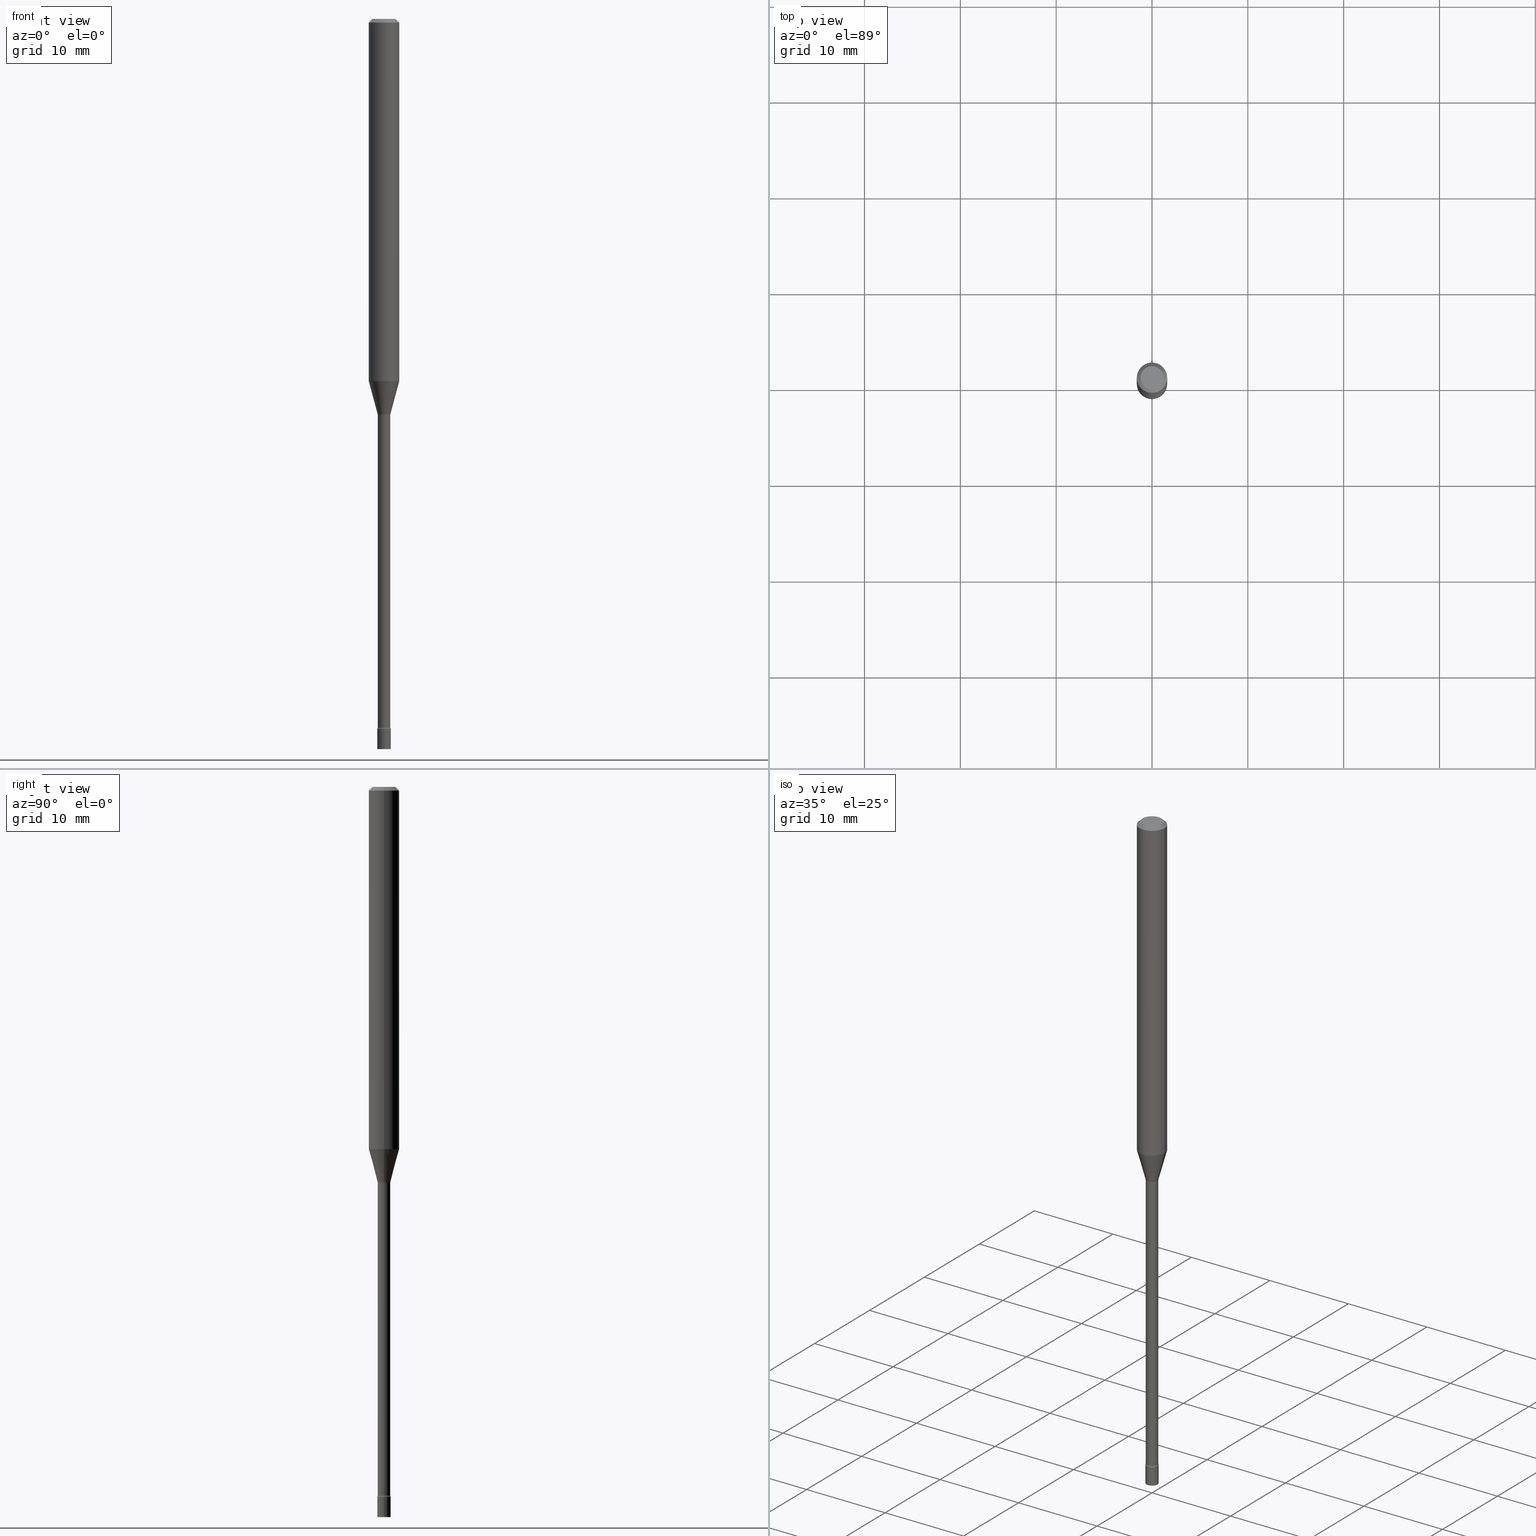
[diagram: canonical four-view strip — front | top / right | iso, engineering-drawing reading convention]
A machine part, canonical four-view strip (front | top / right | iso — engineering-drawing reading convention). The complete STEP part file that produces these views, byte-faithful:
ISO-10303-21;
HEADER;
FILE_DESCRIPTION (( 'STEP AP203' ),
    '1' );
FILE_NAME ('09675.STEP',
    '2024-03-09T00:41:13',
    ( '' ),
    ( '' ),
    'SwSTEP 2.0',
    'SolidWorks 2023',
    '' );
FILE_SCHEMA (( 'CONFIG_CONTROL_DESIGN' ));
ENDSEC;

DATA;
#1 = ORIENTED_EDGE ( 'NONE', *, *, #29, .F. ) ;
#2 = UNCERTAINTY_MEASURE_WITH_UNIT (LENGTH_MEASURE( 1.000000000000000082E-05 ), #58, 'distance_accuracy_value', 'NONE');
#3 = DIRECTION ( 'NONE',  ( -2.445468806185136597E-29, 3.491481338843145583E-15, 1.000000000000000000 ) ) ;
#4 = ORIENTED_EDGE ( 'NONE', *, *, #303, .T. ) ;
#5 = CARTESIAN_POINT ( 'NONE',  ( 7.116706949045365287E-29, -1.016077140046173230E-14, -2.910160592130893065 ) ) ;
#6 = EDGE_CURVE ( 'NONE', #416, #221, #45, .T. ) ;
#7 = FACE_OUTER_BOUND ( 'NONE', #240, .T. ) ;
#8 = TOROIDAL_SURFACE ( 'NONE', #266, 0.04085000000000000436, 0.01500000000000003414 ) ;
#9 = CARTESIAN_POINT ( 'NONE',  ( 0.000000000000000000, 0.000000000000000000, 0.000000000000000000 ) ) ;
#10 = ADVANCED_FACE ( 'NONE', ( #14 ), #481, .T. ) ;
#11 = DIRECTION ( 'NONE',  ( 1.000000000000000000, -6.982962677686266711E-15, 0.000000000000000000 ) ) ;
#12 = ORIENTED_EDGE ( 'NONE', *, *, #259, .F. ) ;
#13 = DIRECTION ( 'NONE',  ( 1.000000000000000000, -6.982962677686262766E-15, 0.000000000000000000 ) ) ;
#14 = FACE_OUTER_BOUND ( 'NONE', #379, .T. ) ;
#15 = AXIS2_PLACEMENT_3D ( 'NONE', #320, #239, #369 ) ;
#16 = VECTOR ( 'NONE', #84, 39.37007874015748143 ) ;
#17 = COORDINATED_UNIVERSAL_TIME_OFFSET ( 5, 0, .BEHIND. ) ;
#18 = CARTESIAN_POINT ( 'NONE',  ( 7.133432507642041740E-29, -1.018465106540545414E-14, -2.916999999999999371 ) ) ;
#19 = DATE_AND_TIME ( #459, #453 ) ;
#20 = CARTESIAN_POINT ( 'NONE',  ( 7.336406418555409790E-29, -1.047444401652943635E-14, -3.000000000000000444 ) ) ;
#21 = EDGE_CURVE ( 'NONE', #299, #149, #249, .T. ) ;
#22 = COORDINATED_UNIVERSAL_TIME_OFFSET ( 5, 0, .BEHIND. ) ;
#23 = CARTESIAN_POINT ( 'NONE',  ( -0.02636111260566397288, -5.115847269272562360E-15, -1.623092501787273489 ) ) ;
#24 = CIRCLE ( 'NONE', #274, 0.02584999999999999798 ) ;
#25 = PERSON_AND_ORGANIZATION ( #475, #386 ) ;
#26 =( GEOMETRIC_REPRESENTATION_CONTEXT ( 3 ) GLOBAL_UNCERTAINTY_ASSIGNED_CONTEXT ( ( #2 ) ) GLOBAL_UNIT_ASSIGNED_CONTEXT ( ( #58, #196, #63 ) ) REPRESENTATION_CONTEXT ( 'NONE', 'WORKASPACE' ) );
#27 = PRODUCT ( '09675', '09675', '', ( #94 ) ) ;
#28 = DIRECTION ( 'NONE',  ( 1.000000000000000000, -6.982962677686262766E-15, 0.000000000000000000 ) ) ;
#29 = EDGE_CURVE ( 'NONE', #221, #420, #519, .T. ) ;
#30 = COORDINATED_UNIVERSAL_TIME_OFFSET ( 5, 0, .BEHIND. ) ;
#31 = DIRECTION ( 'NONE',  ( -2.445468806185136877E-29, 3.491481338843145188E-15, 1.000000000000000000 ) ) ;
#32 = EDGE_LOOP ( 'NONE', ( #418, #446, #1, #70 ) ) ;
#33 = CARTESIAN_POINT ( 'NONE',  ( 0.000000000000000000, 0.000000000000000000, 0.000000000000000000 ) ) ;
#34 = ORIENTED_EDGE ( 'NONE', *, *, #300, .F. ) ;
#35 = VECTOR ( 'NONE', #321, 39.37007874015748143 ) ;
#36 = CIRCLE ( 'NONE', #332, 0.02750000000000000014 ) ;
#37 = CARTESIAN_POINT ( 'NONE',  ( 3.978716091192442903E-29, -5.680552109198189937E-15, -1.626974787463811412 ) ) ;
#38 = CIRCLE ( 'NONE', #215, 0.02750000000000000014 ) ;
#39 = APPROVAL ( #353, 'UNSPECIFIED' ) ;
#40 = EDGE_LOOP ( 'NONE', ( #315, #290, #361, #338 ) ) ;
#41 = DIRECTION ( 'NONE',  ( 1.000000000000000000, -6.982962677686266711E-15, 0.000000000000000000 ) ) ;
#42 = CARTESIAN_POINT ( 'NONE',  ( 3.969222082673770161E-29, -5.666997181206500139E-15, -1.623092501787273489 ) ) ;
#43 = EDGE_LOOP ( 'NONE', ( #262, #75, #476, #399 ) ) ;
#44 = DIRECTION ( 'NONE',  ( 1.000000000000000000, -6.982962677686267499E-15, 4.876681293081646444E-29 ) ) ;
#45 = LINE ( 'NONE', #382, #35 ) ;
#46 = EDGE_CURVE ( 'NONE', #207, #238, #182, .T. ) ;
#47 = CARTESIAN_POINT ( 'NONE',  ( 7.133432507642041740E-29, -1.018465106540545414E-14, -2.916999999999999371 ) ) ;
#48 = CARTESIAN_POINT ( 'NONE',  ( 0.000000000000000000, 0.000000000000000000, 0.000000000000000000 ) ) ;
#49 = FACE_OUTER_BOUND ( 'NONE', #282, .T. ) ;
#50 = CIRCLE ( 'NONE', #358, 0.02750000000000000014 ) ;
#51 = CC_DESIGN_PERSON_AND_ORGANIZATION_ASSIGNMENT ( #227, #390, ( #297 ) ) ;
#52 = FACE_OUTER_BOUND ( 'NONE', #472, .T. ) ;
#53 = ORIENTED_EDGE ( 'NONE', *, *, #435, .F. ) ;
#54 = CYLINDRICAL_SURFACE ( 'NONE', #395, 0.02750000000000000014 ) ;
#55 = ORIENTED_EDGE ( 'NONE', *, *, #21, .T. ) ;
#56 = ORIENTED_EDGE ( 'NONE', *, *, #291, .F. ) ;
#57 = TOROIDAL_SURFACE ( 'NONE', #118, 0.04085000000000000436, 0.01500000000000003414 ) ;
#58 =( CONVERSION_BASED_UNIT ( 'INCH', #101 ) LENGTH_UNIT ( ) NAMED_UNIT ( #392 ) );
#59 = ADVANCED_FACE ( 'NONE', ( #354 ), #311, .F. ) ;
#60 = CARTESIAN_POINT ( 'NONE',  ( -0.04749999999999999362, 3.578768372314209027E-16, -2.891391092787141902E-17 ) ) ;
#61 = PERSON_AND_ORGANIZATION_ROLE ( 'design_supplier' ) ;
#62 = CARTESIAN_POINT ( 'NONE',  ( 0.04085000000000000436, -5.965806134581673875E-15, -1.626974787463811412 ) ) ;
#63 =( NAMED_UNIT ( * ) SI_UNIT ( $, .STERADIAN. ) SOLID_ANGLE_UNIT ( ) );
#64 = DIRECTION ( 'NONE',  ( -2.445468806185136597E-29, 3.491481338843145583E-15, 1.000000000000000000 ) ) ;
#65 = VERTEX_POINT ( 'NONE', #433 ) ;
#66 = AXIS2_PLACEMENT_3D ( 'NONE', #121, #483, #288 ) ;
#67 = APPROVAL_ROLE ( '' ) ;
#68 = LOCAL_TIME ( 19, 41, 13.00000000000000000, #22 ) ;
#69 = DIRECTION ( 'NONE',  ( -2.445468806185136597E-29, 3.491481338843145583E-15, 1.000000000000000000 ) ) ;
#70 = ORIENTED_EDGE ( 'NONE', *, *, #6, .F. ) ;
#71 = PLANE ( 'NONE',  #241 ) ;
#72 = EDGE_LOOP ( 'NONE', ( #170, #437 ) ) ;
#73 = EDGE_CURVE ( 'NONE', #181, #416, #117, .T. ) ;
#74 = DIRECTION ( 'NONE',  ( -1.000000000000000000, 6.982962677686266711E-15, 0.000000000000000000 ) ) ;
#75 = ORIENTED_EDGE ( 'NONE', *, *, #456, .T. ) ;
#76 = AXIS2_PLACEMENT_3D ( 'NONE', #429, #64, #351 ) ;
#77 = DIRECTION ( 'NONE',  ( 1.000000000000000000, -6.982962677686291954E-15, 0.000000000000000000 ) ) ;
#78 = AXIS2_PLACEMENT_3D ( 'NONE', #9, #294, #339 ) ;
#79 = LINE ( 'NONE', #325, #501 ) ;
#80 = ORIENTED_EDGE ( 'NONE', *, *, #73, .F. ) ;
#81 = DIRECTION ( 'NONE',  ( 2.445468806185136597E-29, -3.491481338843145583E-15, -1.000000000000000000 ) ) ;
#82 = VERTEX_POINT ( 'NONE', #154 ) ;
#83 = ADVANCED_FACE ( 'NONE', ( #436 ), #374, .T. ) ;
#84 = DIRECTION ( 'NONE',  ( -0.2588190451025210725, 5.211531920934548675E-15, 0.9659258262890682012 ) ) ;
#85 = CIRCLE ( 'NONE', #173, 0.02585000000000014370 ) ;
#86 = CARTESIAN_POINT ( 'NONE',  ( -0.02636111260566397288, -5.479690210521415430E-15, -1.623092501787273489 ) ) ;
#87 = EDGE_CURVE ( 'NONE', #195, #82, #156, .T. ) ;
#88 = CARTESIAN_POINT ( 'NONE',  ( 3.668203209277712094E-31, -5.237222008264728876E-17, -0.01500000000000003067 ) ) ;
#89 = CARTESIAN_POINT ( 'NONE',  ( 0.02750000000000000014, -1.920314736363723444E-16, 1.340948613343882413E-30 ) ) ;
#90 = AXIS2_PLACEMENT_3D ( 'NONE', #285, #511, #119 ) ;
#91 = AXIS2_PLACEMENT_3D ( 'NONE', #153, #193, #421 ) ;
#92 = CARTESIAN_POINT ( 'NONE',  ( 0.04085000000000015702, -1.044602542584521781E-14, -2.910160592130893065 ) ) ;
#93 = EDGE_LOOP ( 'NONE', ( #4, #271 ) ) ;
#94 = MECHANICAL_CONTEXT ( 'NONE', #126, 'mechanical' ) ;
#95 = EDGE_LOOP ( 'NONE', ( #406, #365, #55, #198 ) ) ;
#96 = CC_DESIGN_DATE_AND_TIME_ASSIGNMENT ( #345, #272, ( #297 ) ) ;
#97 = PERSON_AND_ORGANIZATION ( #475, #386 ) ;
#98 = DIRECTION ( 'NONE',  ( 1.000000000000000000, -6.982962677686266711E-15, 4.876176775795935793E-29 ) ) ;
#99 = CONICAL_SURFACE ( 'NONE', #230, 0.06250000000000000000, 0.7853981633974483900 ) ;
#100 = CC_DESIGN_APPROVAL ( #477, ( #297 ) ) ;
#101 = LENGTH_MEASURE_WITH_UNIT ( LENGTH_MEASURE( 0.02539999999999999897 ), #450 );
#102 = DIRECTION ( 'NONE',  ( 1.000000000000000000, -6.982962677686258822E-15, 0.000000000000000000 ) ) ;
#103 = ADVANCED_FACE ( 'NONE', ( #187 ), #214, .T. ) ;
#104 = DIRECTION ( 'NONE',  ( 1.000000000000000000, -6.982962677686265922E-15, 4.876176775795935793E-29 ) ) ;
#105 = ORIENTED_EDGE ( 'NONE', *, *, #29, .T. ) ;
#106 = CARTESIAN_POINT ( 'NONE',  ( 7.116706949045365287E-29, -1.016077140046173230E-14, -2.910160592130893065 ) ) ;
#107 = VERTEX_POINT ( 'NONE', #60 ) ;
#108 = AXIS2_PLACEMENT_3D ( 'NONE', #258, #69, #28 ) ;
#109 = CARTESIAN_POINT ( 'NONE',  ( -0.06250000000000000000, 4.440892098500626162E-16, -3.074334431409316114E-30 ) ) ;
#110 = ORIENTED_EDGE ( 'NONE', *, *, #461, .F. ) ;
#111 = ADVANCED_FACE ( 'NONE', ( #427 ), #234, .T. ) ;
#112 = CARTESIAN_POINT ( 'NONE',  ( 3.668203209277712094E-31, -5.237222008264728876E-17, -0.01500000000000003067 ) ) ;
#113 = EDGE_CURVE ( 'NONE', #115, #319, #394, .T. ) ;
#114 = DIRECTION ( 'NONE',  ( -2.438088387897960049E-29, 3.491481338843145188E-15, 1.000000000000000000 ) ) ;
#115 = VERTEX_POINT ( 'NONE', #305 ) ;
#116 = SHAPE_DEFINITION_REPRESENTATION ( #120, #324 ) ;
#117 = CIRCLE ( 'NONE', #201, 0.02636111260566397288 ) ;
#118 = AXIS2_PLACEMENT_3D ( 'NONE', #133, #451, #293 ) ;
#119 = DIRECTION ( 'NONE',  ( 1.000000000000000000, -6.982962677686266711E-15, 4.876176775795935793E-29 ) ) ;
#120 = PRODUCT_DEFINITION_SHAPE ( 'NONE', 'NONE',  #328 ) ;
#121 = CARTESIAN_POINT ( 'NONE',  ( 1.920314736364457085E-16, 0.02749999999998952588, -3.000000000000000444 ) ) ;
#122 = CARTESIAN_POINT ( 'NONE',  ( 7.070806723891919892E-46, -1.009523804376275404E-31, -2.891391092786900929E-17 ) ) ;
#123 = ORIENTED_EDGE ( 'NONE', *, *, #6, .T. ) ;
#124 = DIRECTION ( 'NONE',  ( -2.445468806185136597E-29, 3.491481338843145583E-15, 1.000000000000000000 ) ) ;
#125 = EDGE_LOOP ( 'NONE', ( #352, #465, #123, #298 ) ) ;
#126 = APPLICATION_CONTEXT ( 'configuration controlled 3d designs of mechanical parts and assemblies' ) ;
#127 = FACE_OUTER_BOUND ( 'NONE', #95, .T. ) ;
#128 = CLOSED_SHELL ( 'NONE', ( #458, #507, #488, #515, #216, #83, #103, #313, #342, #59, #335, #212, #449, #412 ) ) ;
#129 = CIRCLE ( 'NONE', #432, 0.01500000000000003587 ) ;
#130 = CC_DESIGN_SECURITY_CLASSIFICATION ( #297, ( #376 ) ) ;
#131 = EDGE_CURVE ( 'NONE', #420, #209, #226, .T. ) ;
#132 = CARTESIAN_POINT ( 'NONE',  ( -0.02750000000000000014, -1.013414828863341792E-14, -2.916999999999999371 ) ) ;
#133 = CARTESIAN_POINT ( 'NONE',  ( 3.978716091192442903E-29, -5.680552109198189937E-15, -1.626974787463811412 ) ) ;
#134 = ORIENTED_EDGE ( 'NONE', *, *, #423, .F. ) ;
#135 = VECTOR ( 'NONE', #31, 39.37007874015748143 ) ;
#136 = CC_DESIGN_APPROVAL ( #39, ( #328 ) ) ;
#137 = CARTESIAN_POINT ( 'NONE',  ( 0.02585000000000007084, -1.805095852181904948E-16, 1.260491696543252796E-30 ) ) ;
#138 = EDGE_LOOP ( 'NONE', ( #261, #355, #514, #310 ) ) ;
#139 = EDGE_CURVE ( 'NONE', #416, #286, #129, .T. ) ;
#140 = APPLICATION_PROTOCOL_DEFINITION ( 'international standard', 'config_control_design', 1994, #126 ) ;
#141 = DIRECTION ( 'NONE',  ( -2.445468806185136597E-29, 3.491481338843145583E-15, 1.000000000000000000 ) ) ;
#142 = APPROVAL_DATE_TIME ( #350, #39 ) ;
#143 = DIRECTION ( 'NONE',  ( -6.982962677686266711E-15, -1.000000000000000000, 3.491481338843145583E-15 ) ) ;
#144 = VECTOR ( 'NONE', #408, 39.37007874015748143 ) ;
#145 = AXIS2_PLACEMENT_3D ( 'NONE', #273, #505, #508 ) ;
#146 = ADVANCED_FACE ( 'NONE', ( #197 ), #71, .T. ) ;
#147 = DATE_AND_TIME ( #502, #333 ) ;
#148 = FACE_OUTER_BOUND ( 'NONE', #138, .T. ) ;
#149 = VERTEX_POINT ( 'NONE', #344 ) ;
#150 = DATE_TIME_ROLE ( 'creation_date' ) ;
#151 = CARTESIAN_POINT ( 'NONE',  ( 3.969222082673770161E-29, -5.666997181206500139E-15, -1.623092501787273489 ) ) ;
#152 = EDGE_LOOP ( 'NONE', ( #105, #205, #53, #308 ) ) ;
#153 = CARTESIAN_POINT ( 'NONE',  ( 0.000000000000000000, 0.000000000000000000, 0.000000000000000000 ) ) ;
#154 = CARTESIAN_POINT ( 'NONE',  ( -0.02585000000000014370, -9.983173958169585675E-15, -2.910160592130893065 ) ) ;
#155 = ORIENTED_EDGE ( 'NONE', *, *, #46, .F. ) ;
#156 = CIRCLE ( 'NONE', #413, 0.02585000000000014370 ) ;
#157 = APPROVAL_PERSON_ORGANIZATION ( #224, #39, #388 ) ;
#158 = DIRECTION ( 'NONE',  ( 1.000000000000000000, -6.982962677686265922E-15, 4.876176775795935793E-29 ) ) ;
#159 = EDGE_CURVE ( 'NONE', #82, #238, #422, .T. ) ;
#160 = EDGE_LOOP ( 'NONE', ( #329, #277, #279, #168 ) ) ;
#161 = DIRECTION ( 'NONE',  ( -2.445468806185136877E-29, 3.491481338843145188E-15, 1.000000000000000000 ) ) ;
#162 = ORIENTED_EDGE ( 'NONE', *, *, #180, .F. ) ;
#163 = CARTESIAN_POINT ( 'NONE',  ( 0.02750000000000000014, -1.066647549016580963E-14, -3.000000000000000444 ) ) ;
#164 = ORIENTED_EDGE ( 'NONE', *, *, #400, .T. ) ;
#165 = AXIS2_PLACEMENT_3D ( 'NONE', #401, #3, #403 ) ;
#166 = CC_DESIGN_PERSON_AND_ORGANIZATION_ASSIGNMENT ( #301, #504, ( #328 ) ) ;
#167 = PLANE ( 'NONE',  #409 ) ;
#168 = ORIENTED_EDGE ( 'NONE', *, *, #490, .F. ) ;
#169 = CARTESIAN_POINT ( 'NONE',  ( -0.02750000000000001055, -9.989251813071424442E-15, -2.916999999999999371 ) ) ;
#170 = ORIENTED_EDGE ( 'NONE', *, *, #357, .T. ) ;
#171 = CARTESIAN_POINT ( 'NONE',  ( -0.06250000000000000000, -4.752004328023710079E-15, -1.488220337902601109 ) ) ;
#172 = CARTESIAN_POINT ( 'NONE',  ( 3.668203209277712094E-31, -5.237222008264728876E-17, -0.01500000000000003067 ) ) ;
#173 = AXIS2_PLACEMENT_3D ( 'NONE', #318, #441, #77 ) ;
#174 = AXIS2_PLACEMENT_3D ( 'NONE', #5, #330, #219 ) ;
#175 = CARTESIAN_POINT ( 'NONE',  ( 0.02636111260566397288, -5.851075846674136755E-15, -1.623092501787273489 ) ) ;
#176 = LINE ( 'NONE', #254, #251 ) ;
#177 = ORIENTED_EDGE ( 'NONE', *, *, #139, .T. ) ;
#178 = CYLINDRICAL_SURFACE ( 'NONE', #78, 0.02585000000000007084 ) ;
#179 = APPLICATION_CONTEXT ( 'configuration controlled 3d designs of mechanical parts and assemblies' ) ;
#180 = EDGE_CURVE ( 'NONE', #299, #496, #50, .T. ) ;
#181 = VERTEX_POINT ( 'NONE', #23 ) ;
#182 = CIRCLE ( 'NONE', #145, 0.02750000000000000014 ) ;
#183 = APPROVAL_PERSON_ORGANIZATION ( #97, #188, #466 ) ;
#184 = CALENDAR_DATE ( 2024, 8, 3 ) ;
#185 = DIRECTION ( 'NONE',  ( -2.438088387897960049E-29, 3.491481338843145188E-15, 1.000000000000000000 ) ) ;
#186 = CALENDAR_DATE ( 2024, 8, 3 ) ;
#187 = FACE_OUTER_BOUND ( 'NONE', #125, .T. ) ;
#188 = APPROVAL ( #425, 'UNSPECIFIED' ) ;
#189 = CALENDAR_DATE ( 2024, 8, 3 ) ;
#190 = CARTESIAN_POINT ( 'NONE',  ( 0.02585000000000014370, -1.034128098567992287E-14, -2.910160592130893065 ) ) ;
#191 = AXIS2_PLACEMENT_3D ( 'NONE', #208, #407, #478 ) ;
#192 = AXIS2_PLACEMENT_3D ( 'NONE', #295, #495, #13 ) ;
#193 = DIRECTION ( 'NONE',  ( 0.000000000000000000, 0.000000000000000000, 1.000000000000000000 ) ) ;
#194 = CARTESIAN_POINT ( 'NONE',  ( 3.316907271900976096E-16, 0.04749999999999999362, -1.803023190589839165E-16 ) ) ;
#195 = VERTEX_POINT ( 'NONE', #190 ) ;
#196 =( NAMED_UNIT ( * ) PLANE_ANGLE_UNIT ( ) SI_UNIT ( $, .RADIAN. ) );
#197 = FACE_OUTER_BOUND ( 'NONE', #72, .T. ) ;
#198 = ORIENTED_EDGE ( 'NONE', *, *, #317, .F. ) ;
#199 = DIRECTION ( 'NONE',  ( 1.000000000000000000, -6.982962677686279332E-15, 0.000000000000000000 ) ) ;
#200 = CLOSED_SHELL ( 'NONE', ( #111, #146, #499, #10 ) ) ;
#201 = AXIS2_PLACEMENT_3D ( 'NONE', #469, #141, #460 ) ;
#202 = CARTESIAN_POINT ( 'NONE',  ( -0.02750000000000000014, 1.953992523340275521E-16, -1.352707149820099181E-30 ) ) ;
#203 = ORIENTED_EDGE ( 'NONE', *, *, #435, .T. ) ;
#204 = CARTESIAN_POINT ( 'NONE',  ( 3.978716091192442903E-29, -5.680552109198189937E-15, -1.626974787463811412 ) ) ;
#205 = ORIENTED_EDGE ( 'NONE', *, *, #131, .T. ) ;
#206 = DIRECTION ( 'NONE',  ( 1.000000000000000000, -6.982962677686266711E-15, 4.876176775795935793E-29 ) ) ;
#207 = VERTEX_POINT ( 'NONE', #347 ) ;
#208 = CARTESIAN_POINT ( 'NONE',  ( -0.04085000000000000436, -5.390295401640188634E-15, -1.626974787463811412 ) ) ;
#209 = VERTEX_POINT ( 'NONE', #503 ) ;
#210 = DIRECTION ( 'NONE',  ( 1.000000000000000000, -6.982962677686279332E-15, 0.000000000000000000 ) ) ;
#211 = CARTESIAN_POINT ( 'NONE',  ( 3.978716091192442903E-29, -5.680552109198189937E-15, -1.626974787463811412 ) ) ;
#212 = ADVANCED_FACE ( 'NONE', ( #148 ), #463, .F. ) ;
#213 = LINE ( 'NONE', #86, #16 ) ;
#214 = CONICAL_SURFACE ( 'NONE', #312, 0.02636111260566397288, 0.2617993877991497409 ) ;
#215 = AXIS2_PLACEMENT_3D ( 'NONE', #47, #378, #210 ) ;
#216 = ADVANCED_FACE ( 'NONE', ( #270 ), #327, .T. ) ;
#217 = DIRECTION ( 'NONE',  ( -2.445468806185136597E-29, 3.491481338843145583E-15, 1.000000000000000000 ) ) ;
#218 = ORIENTED_EDGE ( 'NONE', *, *, #259, .T. ) ;
#219 = DIRECTION ( 'NONE',  ( 1.000000000000000000, -6.982962677686276177E-15, 4.883557194083116264E-29 ) ) ;
#220 = ORIENTED_EDGE ( 'NONE', *, *, #419, .F. ) ;
#221 = VERTEX_POINT ( 'NONE', #356 ) ;
#222 = CIRCLE ( 'NONE', #510, 0.02584999999999999798 ) ;
#223 = LOCAL_TIME ( 19, 41, 13.00000000000000000, #17 ) ;
#224 = PERSON_AND_ORGANIZATION ( #475, #386 ) ;
#225 = EDGE_CURVE ( 'NONE', #107, #209, #79, .T. ) ;
#226 = LINE ( 'NONE', #109, #135 ) ;
#227 = PERSON_AND_ORGANIZATION ( #475, #386 ) ;
#228 = DIRECTION ( 'NONE',  ( 1.000000000000000000, -6.982962677686279332E-15, 0.000000000000000000 ) ) ;
#229 = DIRECTION ( 'NONE',  ( -2.445468806185136597E-29, 3.491481338843145583E-15, 1.000000000000000000 ) ) ;
#230 = AXIS2_PLACEMENT_3D ( 'NONE', #112, #81, #74 ) ;
#231 = LOCAL_TIME ( 19, 41, 13.00000000000000000, #263 ) ;
#232 = ORIENTED_EDGE ( 'NONE', *, *, #280, .F. ) ;
#233 = APPROVAL_STATUS ( 'not_yet_approved' ) ;
#234 = CYLINDRICAL_SURFACE ( 'NONE', #440, 0.02750000000000000014 ) ;
#235 = EDGE_LOOP ( 'NONE', ( #80, #218, #164, #506 ) ) ;
#236 = MANIFOLD_SOLID_BREP ( 'Body-Move/Copy2[1]', #200 ) ;
#237 = FACE_OUTER_BOUND ( 'NONE', #43, .T. ) ;
#238 = VERTEX_POINT ( 'NONE', #169 ) ;
#239 = DIRECTION ( 'NONE',  ( -2.445468806185136597E-29, 3.491481338843145583E-15, 1.000000000000000000 ) ) ;
#240 = EDGE_LOOP ( 'NONE', ( #434, #493, #34, #110 ) ) ;
#241 = AXIS2_PLACEMENT_3D ( 'NONE', #18, #185, #104 ) ;
#242 = CIRCLE ( 'NONE', #470, 0.06250000000000000000 ) ;
#243 = DIRECTION ( 'NONE',  ( -2.445468806185136597E-29, 3.491481338843145583E-15, 1.000000000000000000 ) ) ;
#244 = CC_DESIGN_PERSON_AND_ORGANIZATION_ASSIGNMENT ( #462, #61, ( #376 ) ) ;
#245 = DESIGN_CONTEXT ( 'detailed design', #179, 'design' ) ;
#246 = CARTESIAN_POINT ( 'NONE',  ( 0.06250000000000000000, -4.888073874380389458E-16, -0.01500000000000003067 ) ) ;
#247 = ORIENTED_EDGE ( 'NONE', *, *, #461, .T. ) ;
#248 = LINE ( 'NONE', #281, #468 ) ;
#249 = LINE ( 'NONE', #89, #144 ) ;
#250 = CIRCLE ( 'NONE', #15, 0.02750000000000000014 ) ;
#251 = VECTOR ( 'NONE', #260, 39.37007874015748143 ) ;
#252 = EDGE_CURVE ( 'NONE', #496, #430, #364, .T. ) ;
#253 = DIRECTION ( 'NONE',  ( 1.000000000000000000, -6.982962677686262766E-15, 0.000000000000000000 ) ) ;
#254 = CARTESIAN_POINT ( 'NONE',  ( -0.02585000000000007084, 1.836752971939864014E-16, -1.271544720830896737E-30 ) ) ;
#255 = DIRECTION ( 'NONE',  ( -6.982962677686266711E-15, -1.000000000000000000, 3.491481338843145583E-15 ) ) ;
#256 = AXIS2_PLACEMENT_3D ( 'NONE', #42, #289, #516 ) ;
#257 = AXIS2_PLACEMENT_3D ( 'NONE', #172, #334, #489 ) ;
#258 = CARTESIAN_POINT ( 'NONE',  ( 3.639396413071114317E-29, -5.196093537873772696E-15, -1.488220337902601109 ) ) ;
#259 = EDGE_CURVE ( 'NONE', #181, #65, #283, .T. ) ;
#260 = DIRECTION ( 'NONE',  ( -2.445468806185136877E-29, 3.491481338843145188E-15, 1.000000000000000000 ) ) ;
#261 = ORIENTED_EDGE ( 'NONE', *, *, #159, .F. ) ;
#262 = ORIENTED_EDGE ( 'NONE', *, *, #131, .F. ) ;
#263 = COORDINATED_UNIVERSAL_TIME_OFFSET ( 5, 0, .BEHIND. ) ;
#264 = CARTESIAN_POINT ( 'NONE',  ( 0.06250000000000000000, -4.811533449433680977E-16, -0.01500000000000003067 ) ) ;
#265 = AXIS2_PLACEMENT_3D ( 'NONE', #482, #360, #474 ) ;
#266 = AXIS2_PLACEMENT_3D ( 'NONE', #211, #410, #411 ) ;
#267 = APPROVAL_DATE_TIME ( #269, #188 ) ;
#268 = DIRECTION ( 'NONE',  ( -2.445468806185136597E-29, 3.491481338843145583E-15, 1.000000000000000000 ) ) ;
#269 = DATE_AND_TIME ( #186, #231 ) ;
#270 = FACE_OUTER_BOUND ( 'NONE', #152, .T. ) ;
#271 = ORIENTED_EDGE ( 'NONE', *, *, #331, .T. ) ;
#272 = DATE_TIME_ROLE ( 'classification_date' ) ;
#273 = CARTESIAN_POINT ( 'NONE',  ( 7.133432507642041740E-29, -1.018465106540545414E-14, -2.916999999999999371 ) ) ;
#274 = AXIS2_PLACEMENT_3D ( 'NONE', #37, #124, #445 ) ;
#275 = CC_DESIGN_PERSON_AND_ORGANIZATION_ASSIGNMENT ( #25, #383, ( #27 ) ) ;
#276 = DIRECTION ( 'NONE',  ( 1.000000000000000000, -6.982962677686251722E-15, 0.000000000000000000 ) ) ;
#277 = ORIENTED_EDGE ( 'NONE', *, *, #159, .T. ) ;
#278 = DIRECTION ( 'NONE',  ( -2.445468806185136597E-29, 3.491481338843145583E-15, 1.000000000000000000 ) ) ;
#279 = ORIENTED_EDGE ( 'NONE', *, *, #423, .T. ) ;
#280 = EDGE_CURVE ( 'NONE', #496, #299, #479, .T. ) ;
#281 = CARTESIAN_POINT ( 'NONE',  ( 0.06250000000000000000, -4.364351673553916694E-16, 3.047610484872459871E-30 ) ) ;
#282 = EDGE_LOOP ( 'NONE', ( #220, #512, #247, #442 ) ) ;
#283 = CIRCLE ( 'NONE', #191, 0.01500000000000003587 ) ;
#284 = CONICAL_SURFACE ( 'NONE', #257, 0.06250000000000000000, 0.7853981633974483900 ) ;
#285 = CARTESIAN_POINT ( 'NONE',  ( 0.000000000000000000, 0.000000000000000000, 0.000000000000000000 ) ) ;
#286 = VERTEX_POINT ( 'NONE', #287 ) ;
#287 = CARTESIAN_POINT ( 'NONE',  ( 0.02584999999999999798, -5.861061694416379716E-15, -1.626974787463811412 ) ) ;
#288 = DIRECTION ( 'NONE',  ( -1.000000000000000000, 6.982962677686265922E-15, -4.876176775795935793E-29 ) ) ;
#289 = DIRECTION ( 'NONE',  ( -2.445468806185136597E-29, 3.491481338843145583E-15, 1.000000000000000000 ) ) ;
#290 = ORIENTED_EDGE ( 'NONE', *, *, #252, .T. ) ;
#291 = EDGE_CURVE ( 'NONE', #416, #181, #494, .T. ) ;
#292 = TOROIDAL_SURFACE ( 'NONE', #174, 0.04085000000000015702, 0.01500000000000001506 ) ;
#293 = DIRECTION ( 'NONE',  ( 1.000000000000000000, -6.982962677686274599E-15, 4.883557194083115704E-29 ) ) ;
#294 = DIRECTION ( 'NONE',  ( -2.445468806185136597E-29, 3.491481338843145583E-15, 1.000000000000000000 ) ) ;
#295 = CARTESIAN_POINT ( 'NONE',  ( 3.639396413071114317E-29, -5.196093537873772696E-15, -1.488220337902601109 ) ) ;
#296 = VECTOR ( 'NONE', #484, 39.37007874015748143 ) ;
#297 = SECURITY_CLASSIFICATION ( '', '', #428 ) ;
#298 = ORIENTED_EDGE ( 'NONE', *, *, #456, .F. ) ;
#299 = VERTEX_POINT ( 'NONE', #163 ) ;
#300 = EDGE_CURVE ( 'NONE', #286, #65, #24, .T. ) ;
#301 = PERSON_AND_ORGANIZATION ( #475, #386 ) ;
#302 = DIRECTION ( 'NONE',  ( 1.000000000000000000, -6.982962677686258822E-15, 0.000000000000000000 ) ) ;
#303 = EDGE_CURVE ( 'NONE', #107, #115, #452, .T. ) ;
#304 = PERSON_AND_ORGANIZATION_ROLE ( 'creator' ) ;
#305 = CARTESIAN_POINT ( 'NONE',  ( 0.04749999999999999362, -4.035134999187579609E-16, -2.891391092786643933E-17 ) ) ;
#306 = APPROVAL_DATE_TIME ( #147, #477 ) ;
#307 = DIRECTION ( 'NONE',  ( -2.445468806185136597E-29, 3.491481338843145583E-15, 1.000000000000000000 ) ) ;
#308 = ORIENTED_EDGE ( 'NONE', *, *, #349, .F. ) ;
#309 = DIRECTION ( 'NONE',  ( -2.445468806185136597E-29, 3.491481338843145583E-15, 1.000000000000000000 ) ) ;
#310 = ORIENTED_EDGE ( 'NONE', *, *, #46, .T. ) ;
#311 = PLANE ( 'NONE',  #366 ) ;
#312 = AXIS2_PLACEMENT_3D ( 'NONE', #424, #229, #102 ) ;
#313 = ADVANCED_FACE ( 'NONE', ( #237 ), #439, .T. ) ;
#314 = CIRCLE ( 'NONE', #414, 0.01500000000000001159 ) ;
#315 = ORIENTED_EDGE ( 'NONE', *, *, #180, .T. ) ;
#316 = DIRECTION ( 'NONE',  ( -2.445468806185136597E-29, 3.491481338843145583E-15, 1.000000000000000000 ) ) ;
#317 = EDGE_CURVE ( 'NONE', #430, #149, #36, .T. ) ;
#318 = CARTESIAN_POINT ( 'NONE',  ( 7.116706949045365287E-29, -1.016077140046173230E-14, -2.910160592130893065 ) ) ;
#319 = VERTEX_POINT ( 'NONE', #246 ) ;
#320 = CARTESIAN_POINT ( 'NONE',  ( 7.133432507642041740E-29, -1.018465106540545414E-14, -2.916999999999999371 ) ) ;
#321 = DIRECTION ( 'NONE',  ( 0.2588190451025210725, 1.565188264969624137E-15, 0.9659258262890682012 ) ) ;
#322 = AXIS2_PLACEMENT_3D ( 'NONE', #122, #316, #44 ) ;
#323 = AXIS2_PLACEMENT_3D ( 'NONE', #371, #415, #486 ) ;
#324 = ADVANCED_BREP_SHAPE_REPRESENTATION ( '09675', ( #236, #405, #91 ), #26 ) ;
#325 = CARTESIAN_POINT ( 'NONE',  ( -0.06250000000000000000, 3.840629472727443437E-16, -0.01500000000000003067 ) ) ;
#326 = ORIENTED_EDGE ( 'NONE', *, *, #331, .F. ) ;
#327 = CYLINDRICAL_SURFACE ( 'NONE', #375, 0.06250000000000000000 ) ;
#328 = PRODUCT_DEFINITION ( 'UNKNOWN', '', #376, #245 ) ;
#329 = ORIENTED_EDGE ( 'NONE', *, *, #373, .F. ) ;
#330 = DIRECTION ( 'NONE',  ( -2.445468806185136597E-29, 3.491481338843145583E-15, 1.000000000000000000 ) ) ;
#331 = EDGE_CURVE ( 'NONE', #115, #107, #393, .T. ) ;
#332 = AXIS2_PLACEMENT_3D ( 'NONE', #518, #398, #199 ) ;
#333 = LOCAL_TIME ( 19, 41, 13.00000000000000000, #30 ) ;
#334 = DIRECTION ( 'NONE',  ( 2.445468806185136597E-29, -3.491481338843145583E-15, -1.000000000000000000 ) ) ;
#335 = ADVANCED_FACE ( 'NONE', ( #513 ), #167, .F. ) ;
#336 = FACE_OUTER_BOUND ( 'NONE', #457, .T. ) ;
#337 = DIRECTION ( 'NONE',  ( -2.445468806185136877E-29, 3.491481338843145188E-15, 1.000000000000000000 ) ) ;
#338 = ORIENTED_EDGE ( 'NONE', *, *, #21, .F. ) ;
#339 = DIRECTION ( 'NONE',  ( 1.000000000000000000, -6.982962677686266711E-15, 4.876176775795935793E-29 ) ) ;
#340 = EDGE_LOOP ( 'NONE', ( #444, #517, #359, #455 ) ) ;
#341 = CARTESIAN_POINT ( 'NONE',  ( 0.000000000000000000, 0.000000000000000000, 0.000000000000000000 ) ) ;
#342 = ADVANCED_FACE ( 'NONE', ( #473 ), #99, .T. ) ;
#343 = PERSON_AND_ORGANIZATION ( #475, #386 ) ;
#344 = CARTESIAN_POINT ( 'NONE',  ( 0.02750000000000000014, -1.037668253904182584E-14, -2.916999999999999371 ) ) ;
#345 = DATE_AND_TIME ( #189, #68 ) ;
#346 = AXIS2_PLACEMENT_3D ( 'NONE', #467, #389, #391 ) ;
#347 = CARTESIAN_POINT ( 'NONE',  ( 0.02750000000000001055, -1.037668253904182584E-14, -2.916999999999999371 ) ) ;
#348 = CIRCLE ( 'NONE', #192, 0.06250000000000000000 ) ;
#349 = EDGE_CURVE ( 'NONE', #221, #319, #248, .T. ) ;
#350 = DATE_AND_TIME ( #184, #223 ) ;
#351 = DIRECTION ( 'NONE',  ( 1.000000000000000000, -6.982962677686276177E-15, 4.883557194083116264E-29 ) ) ;
#352 = ORIENTED_EDGE ( 'NONE', *, *, #471, .F. ) ;
#353 = APPROVAL_STATUS ( 'not_yet_approved' ) ;
#354 = FACE_OUTER_BOUND ( 'NONE', #93, .T. ) ;
#355 = ORIENTED_EDGE ( 'NONE', *, *, #87, .F. ) ;
#356 = CARTESIAN_POINT ( 'NONE',  ( 0.06250000000000000000, -5.632528705229164365E-15, -1.488220337902601109 ) ) ;
#357 = EDGE_CURVE ( 'NONE', #149, #430, #250, .T. ) ;
#358 = AXIS2_PLACEMENT_3D ( 'NONE', #20, #464, #228 ) ;
#359 = ORIENTED_EDGE ( 'NONE', *, *, #225, .T. ) ;
#360 = DIRECTION ( 'NONE',  ( -2.445468806185136597E-29, 3.491481338843145583E-15, 1.000000000000000000 ) ) ;
#361 = ORIENTED_EDGE ( 'NONE', *, *, #357, .F. ) ;
#362 = DIRECTION ( 'NONE',  ( -2.445468806185136597E-29, 3.491481338843145583E-15, 1.000000000000000000 ) ) ;
#363 = ORIENTED_EDGE ( 'NONE', *, *, #225, .F. ) ;
#364 = LINE ( 'NONE', #202, #296 ) ;
#365 = ORIENTED_EDGE ( 'NONE', *, *, #280, .T. ) ;
#366 = AXIS2_PLACEMENT_3D ( 'NONE', #194, #498, #387 ) ;
#367 = APPROVAL_PERSON_ORGANIZATION ( #431, #477, #67 ) ;
#368 = CC_DESIGN_DATE_AND_TIME_ASSIGNMENT ( #19, #150, ( #328 ) ) ;
#369 = DIRECTION ( 'NONE',  ( 1.000000000000000000, -6.982962677686279332E-15, 0.000000000000000000 ) ) ;
#370 = EDGE_LOOP ( 'NONE', ( #155, #134 ) ) ;
#371 = CARTESIAN_POINT ( 'NONE',  ( 0.000000000000000000, 0.000000000000000000, 0.000000000000000000 ) ) ;
#372 = DIRECTION ( 'NONE',  ( 1.000000000000000000, -6.982962677686266711E-15, 4.876176775795935793E-29 ) ) ;
#373 = EDGE_CURVE ( 'NONE', #82, #195, #85, .T. ) ;
#374 = CONICAL_SURFACE ( 'NONE', #402, 0.02636111260566397288, 0.2617993877991497409 ) ;
#375 = AXIS2_PLACEMENT_3D ( 'NONE', #33, #278, #206 ) ;
#376 = PRODUCT_DEFINITION_FORMATION_WITH_SPECIFIED_SOURCE ( 'ANY', '', #27, .NOT_KNOWN. ) ;
#377 = CYLINDRICAL_SURFACE ( 'NONE', #323, 0.02585000000000007084 ) ;
#378 = DIRECTION ( 'NONE',  ( -2.445468806185136597E-29, 3.491481338843145583E-15, 1.000000000000000000 ) ) ;
#379 = EDGE_LOOP ( 'NONE', ( #162, #232 ) ) ;
#380 = EDGE_CURVE ( 'NONE', #209, #319, #384, .T. ) ;
#381 = DIRECTION ( 'NONE',  ( -2.445468806185136597E-29, 3.491481338843145583E-15, 1.000000000000000000 ) ) ;
#382 = CARTESIAN_POINT ( 'NONE',  ( 0.02636111260566397288, -5.851075846674136755E-15, -1.623092501787273489 ) ) ;
#383 = PERSON_AND_ORGANIZATION_ROLE ( 'design_owner' ) ;
#384 = CIRCLE ( 'NONE', #447, 0.06250000000000000000 ) ;
#385 = PRODUCT_RELATED_PRODUCT_CATEGORY ( 'detail', '', ( #27 ) ) ;
#386 = ORGANIZATION ( 'UNSPECIFIED', 'UNSPECIFIED', '' ) ;
#387 = DIRECTION ( 'NONE',  ( -1.000000000000000000, 6.982962677686265922E-15, -4.876176775795935793E-29 ) ) ;
#388 = APPROVAL_ROLE ( '' ) ;
#389 = DIRECTION ( 'NONE',  ( 7.105427357601001859E-15, 1.000000000000000000, -3.491481338843145583E-15 ) ) ;
#390 = PERSON_AND_ORGANIZATION_ROLE ( 'classification_officer' ) ;
#391 = DIRECTION ( 'NONE',  ( -1.000000000000000000, 7.105427357600985293E-15, 0.000000000000000000 ) ) ;
#392 = DIMENSIONAL_EXPONENTS ( 1.000000000000000000, 0.000000000000000000, 0.000000000000000000, 0.000000000000000000, 0.000000000000000000, 0.000000000000000000, 0.000000000000000000 ) ;
#393 = CIRCLE ( 'NONE', #165, 0.04749999999999999362 ) ;
#394 = LINE ( 'NONE', #264, #487 ) ;
#395 = AXIS2_PLACEMENT_3D ( 'NONE', #48, #381, #372 ) ;
#396 = COORDINATED_UNIVERSAL_TIME_OFFSET ( 5, 0, .BEHIND. ) ;
#397 = DIRECTION ( 'NONE',  ( 0.7071067811865475727, -7.319954787623256045E-15, -0.7071067811865474617 ) ) ;
#398 = DIRECTION ( 'NONE',  ( -2.445468806185136597E-29, 3.491481338843145583E-15, 1.000000000000000000 ) ) ;
#399 = ORIENTED_EDGE ( 'NONE', *, *, #380, .F. ) ;
#400 = EDGE_CURVE ( 'NONE', #65, #286, #222, .T. ) ;
#401 = CARTESIAN_POINT ( 'NONE',  ( 7.070806723891919892E-46, -1.009523804376275404E-31, -2.891391092786900929E-17 ) ) ;
#402 = AXIS2_PLACEMENT_3D ( 'NONE', #151, #307, #302 ) ;
#403 = DIRECTION ( 'NONE',  ( 1.000000000000000000, -6.982962677686267499E-15, 4.876681293081646444E-29 ) ) ;
#404 = CARTESIAN_POINT ( 'NONE',  ( 3.668203209277712094E-31, -5.237222008264728876E-17, -0.01500000000000003067 ) ) ;
#405 = MANIFOLD_SOLID_BREP ( 'Body-Move/Copy2[2]', #128 ) ;
#406 = ORIENTED_EDGE ( 'NONE', *, *, #252, .F. ) ;
#407 = DIRECTION ( 'NONE',  ( 7.105427357601001859E-15, 1.000000000000000000, -3.491481338843145583E-15 ) ) ;
#408 = DIRECTION ( 'NONE',  ( -2.445468806185136877E-29, 3.491481338843145188E-15, 1.000000000000000000 ) ) ;
#409 = AXIS2_PLACEMENT_3D ( 'NONE', #443, #114, #158 ) ;
#410 = DIRECTION ( 'NONE',  ( -2.445468806185136597E-29, 3.491481338843145583E-15, 1.000000000000000000 ) ) ;
#411 = DIRECTION ( 'NONE',  ( 1.000000000000000000, -6.982962677686274599E-15, 4.883557194083115704E-29 ) ) ;
#412 = ADVANCED_FACE ( 'NONE', ( #52 ), #57, .F. ) ;
#413 = AXIS2_PLACEMENT_3D ( 'NONE', #106, #268, #500 ) ;
#414 = AXIS2_PLACEMENT_3D ( 'NONE', #92, #255, #253 ) ;
#415 = DIRECTION ( 'NONE',  ( -2.445468806185136597E-29, 3.491481338843145583E-15, 1.000000000000000000 ) ) ;
#416 = VERTEX_POINT ( 'NONE', #175 ) ;
#417 = FACE_OUTER_BOUND ( 'NONE', #160, .T. ) ;
#418 = ORIENTED_EDGE ( 'NONE', *, *, #291, .T. ) ;
#419 = EDGE_CURVE ( 'NONE', #82, #65, #176, .T. ) ;
#420 = VERTEX_POINT ( 'NONE', #171 ) ;
#421 = DIRECTION ( 'NONE',  ( 1.000000000000000000, 0.000000000000000000, 0.000000000000000000 ) ) ;
#422 = CIRCLE ( 'NONE', #346, 0.01500000000000001159 ) ;
#423 = EDGE_CURVE ( 'NONE', #238, #207, #38, .T. ) ;
#424 = CARTESIAN_POINT ( 'NONE',  ( 3.969222082673770161E-29, -5.666997181206500139E-15, -1.623092501787273489 ) ) ;
#425 = APPROVAL_STATUS ( 'not_yet_approved' ) ;
#426 = CC_DESIGN_PERSON_AND_ORGANIZATION_ASSIGNMENT ( #343, #304, ( #376 ) ) ;
#427 = FACE_OUTER_BOUND ( 'NONE', #40, .T. ) ;
#428 = SECURITY_CLASSIFICATION_LEVEL ( 'unclassified' ) ;
#429 = CARTESIAN_POINT ( 'NONE',  ( 7.116706949045365287E-29, -1.016077140046173230E-14, -2.910160592130893065 ) ) ;
#430 = VERTEX_POINT ( 'NONE', #132 ) ;
#431 = PERSON_AND_ORGANIZATION ( #475, #386 ) ;
#432 = AXIS2_PLACEMENT_3D ( 'NONE', #62, #143, #276 ) ;
#433 = CARTESIAN_POINT ( 'NONE',  ( -0.02584999999999999798, -7.736986457635971782E-15, -1.626974787463811412 ) ) ;
#434 = ORIENTED_EDGE ( 'NONE', *, *, #87, .T. ) ;
#435 = EDGE_CURVE ( 'NONE', #319, #209, #242, .T. ) ;
#436 = FACE_OUTER_BOUND ( 'NONE', #32, .T. ) ;
#437 = ORIENTED_EDGE ( 'NONE', *, *, #317, .T. ) ;
#438 = DIRECTION ( 'NONE',  ( -0.7071067811865475727, 2.468850131082257455E-15, -0.7071067811865474617 ) ) ;
#439 = CYLINDRICAL_SURFACE ( 'NONE', #90, 0.06250000000000000000 ) ;
#440 = AXIS2_PLACEMENT_3D ( 'NONE', #341, #309, #98 ) ;
#441 = DIRECTION ( 'NONE',  ( -2.445468806185136597E-29, 3.491481338843145583E-15, 1.000000000000000000 ) ) ;
#442 = ORIENTED_EDGE ( 'NONE', *, *, #400, .F. ) ;
#443 = CARTESIAN_POINT ( 'NONE',  ( 1.920314736364436624E-16, 0.02749999999998981731, -2.916999999999999371 ) ) ;
#444 = ORIENTED_EDGE ( 'NONE', *, *, #113, .F. ) ;
#445 = DIRECTION ( 'NONE',  ( 1.000000000000000000, -6.982962677686256455E-15, 0.000000000000000000 ) ) ;
#446 = ORIENTED_EDGE ( 'NONE', *, *, #471, .T. ) ;
#447 = AXIS2_PLACEMENT_3D ( 'NONE', #404, #243, #41 ) ;
#448 = DIRECTION ( 'NONE',  ( 1.000000000000000000, -6.982962677686256455E-15, 0.000000000000000000 ) ) ;
#449 = ADVANCED_FACE ( 'NONE', ( #49 ), #377, .T. ) ;
#450 =( LENGTH_UNIT ( ) NAMED_UNIT ( * ) SI_UNIT ( $, .METRE. ) );
#451 = DIRECTION ( 'NONE',  ( -2.445468806185136597E-29, 3.491481338843145583E-15, 1.000000000000000000 ) ) ;
#452 = CIRCLE ( 'NONE', #322, 0.04749999999999999362 ) ;
#453 = LOCAL_TIME ( 19, 41, 13.00000000000000000, #396 ) ;
#454 = FACE_OUTER_BOUND ( 'NONE', #235, .T. ) ;
#455 = ORIENTED_EDGE ( 'NONE', *, *, #380, .T. ) ;
#456 = EDGE_CURVE ( 'NONE', #420, #221, #348, .T. ) ;
#457 = EDGE_LOOP ( 'NONE', ( #326, #509, #203, #363 ) ) ;
#458 = ADVANCED_FACE ( 'NONE', ( #454 ), #8, .F. ) ;
#459 = CALENDAR_DATE ( 2024, 8, 3 ) ;
#460 = DIRECTION ( 'NONE',  ( 1.000000000000000000, -6.982962677686258822E-15, 0.000000000000000000 ) ) ;
#461 = EDGE_CURVE ( 'NONE', #195, #286, #491, .T. ) ;
#462 = PERSON_AND_ORGANIZATION ( #475, #386 ) ;
#463 = TOROIDAL_SURFACE ( 'NONE', #76, 0.04085000000000015702, 0.01500000000000001506 ) ;
#464 = DIRECTION ( 'NONE',  ( -2.445468806185136597E-29, 3.491481338843145583E-15, 1.000000000000000000 ) ) ;
#465 = ORIENTED_EDGE ( 'NONE', *, *, #73, .T. ) ;
#466 = APPROVAL_ROLE ( '' ) ;
#467 = CARTESIAN_POINT ( 'NONE',  ( -0.04085000000000015702, -9.870514692903729418E-15, -2.910160592130893065 ) ) ;
#468 = VECTOR ( 'NONE', #161, 39.37007874015748143 ) ;
#469 = CARTESIAN_POINT ( 'NONE',  ( 3.969222082673770161E-29, -5.666997181206500139E-15, -1.623092501787273489 ) ) ;
#470 = AXIS2_PLACEMENT_3D ( 'NONE', #88, #217, #11 ) ;
#471 = EDGE_CURVE ( 'NONE', #181, #420, #213, .T. ) ;
#472 = EDGE_LOOP ( 'NONE', ( #12, #56, #177, #485 ) ) ;
#473 = FACE_OUTER_BOUND ( 'NONE', #340, .T. ) ;
#474 = DIRECTION ( 'NONE',  ( 1.000000000000000000, -6.982962677686279332E-15, 0.000000000000000000 ) ) ;
#475 = PERSON ( 'UNSPECIFIED', 'UNSPECIFIED', 'UNSPECIFIED', ('UNSPECIFIED'), ('UNSPECIFIED'), ('UNSPECIFIED') ) ;
#476 = ORIENTED_EDGE ( 'NONE', *, *, #349, .T. ) ;
#477 = APPROVAL ( #233, 'UNSPECIFIED' ) ;
#478 = DIRECTION ( 'NONE',  ( -1.000000000000000000, 7.105427357600974249E-15, 0.000000000000000000 ) ) ;
#479 = CIRCLE ( 'NONE', #265, 0.02750000000000000014 ) ;
#480 = VECTOR ( 'NONE', #337, 39.37007874015748143 ) ;
#481 = PLANE ( 'NONE',  #66 ) ;
#482 = CARTESIAN_POINT ( 'NONE',  ( 7.336406418555409790E-29, -1.047444401652943635E-14, -3.000000000000000444 ) ) ;
#483 = DIRECTION ( 'NONE',  ( 2.438088387897960049E-29, -3.491481338843145188E-15, -1.000000000000000000 ) ) ;
#484 = DIRECTION ( 'NONE',  ( -2.445468806185136877E-29, 3.491481338843145188E-15, 1.000000000000000000 ) ) ;
#485 = ORIENTED_EDGE ( 'NONE', *, *, #300, .T. ) ;
#486 = DIRECTION ( 'NONE',  ( 1.000000000000000000, -6.982962677686266711E-15, 4.876176775795935793E-29 ) ) ;
#487 = VECTOR ( 'NONE', #397, 39.37007874015748143 ) ;
#488 = ADVANCED_FACE ( 'NONE', ( #417 ), #292, .F. ) ;
#489 = DIRECTION ( 'NONE',  ( -1.000000000000000000, 6.982962677686266711E-15, 0.000000000000000000 ) ) ;
#490 = EDGE_CURVE ( 'NONE', #195, #207, #314, .T. ) ;
#491 = LINE ( 'NONE', #137, #480 ) ;
#492 = CARTESIAN_POINT ( 'NONE',  ( -0.02750000000000000014, -1.013414828863341792E-14, -3.000000000000000444 ) ) ;
#493 = ORIENTED_EDGE ( 'NONE', *, *, #419, .T. ) ;
#494 = CIRCLE ( 'NONE', #256, 0.02636111260566397288 ) ;
#495 = DIRECTION ( 'NONE',  ( -2.445468806185136597E-29, 3.491481338843145583E-15, 1.000000000000000000 ) ) ;
#496 = VERTEX_POINT ( 'NONE', #492 ) ;
#497 = APPLICATION_PROTOCOL_DEFINITION ( 'international standard', 'config_control_design', 1994, #179 ) ;
#498 = DIRECTION ( 'NONE',  ( 2.438088387897960049E-29, -3.491481338843145188E-15, -1.000000000000000000 ) ) ;
#499 = ADVANCED_FACE ( 'NONE', ( #127 ), #54, .T. ) ;
#500 = DIRECTION ( 'NONE',  ( 1.000000000000000000, -6.982962677686291954E-15, 0.000000000000000000 ) ) ;
#501 = VECTOR ( 'NONE', #438, 39.37007874015748143 ) ;
#502 = CALENDAR_DATE ( 2024, 8, 3 ) ;
#503 = CARTESIAN_POINT ( 'NONE',  ( -0.06250000000000000000, -2.180143669128147468E-15, -0.01500000000000003067 ) ) ;
#504 = PERSON_AND_ORGANIZATION_ROLE ( 'creator' ) ;
#505 = DIRECTION ( 'NONE',  ( -2.445468806185136597E-29, 3.491481338843145583E-15, 1.000000000000000000 ) ) ;
#506 = ORIENTED_EDGE ( 'NONE', *, *, #139, .F. ) ;
#507 = ADVANCED_FACE ( 'NONE', ( #7 ), #178, .T. ) ;
#508 = DIRECTION ( 'NONE',  ( 1.000000000000000000, -6.982962677686279332E-15, 0.000000000000000000 ) ) ;
#509 = ORIENTED_EDGE ( 'NONE', *, *, #113, .T. ) ;
#510 = AXIS2_PLACEMENT_3D ( 'NONE', #204, #362, #448 ) ;
#511 = DIRECTION ( 'NONE',  ( -2.445468806185136597E-29, 3.491481338843145583E-15, 1.000000000000000000 ) ) ;
#512 = ORIENTED_EDGE ( 'NONE', *, *, #373, .T. ) ;
#513 = FACE_OUTER_BOUND ( 'NONE', #370, .T. ) ;
#514 = ORIENTED_EDGE ( 'NONE', *, *, #490, .T. ) ;
#515 = ADVANCED_FACE ( 'NONE', ( #336 ), #284, .T. ) ;
#516 = DIRECTION ( 'NONE',  ( 1.000000000000000000, -6.982962677686258822E-15, 0.000000000000000000 ) ) ;
#517 = ORIENTED_EDGE ( 'NONE', *, *, #303, .F. ) ;
#518 = CARTESIAN_POINT ( 'NONE',  ( 7.133432507642041740E-29, -1.018465106540545414E-14, -2.916999999999999371 ) ) ;
#519 = CIRCLE ( 'NONE', #108, 0.06250000000000000000 ) ;
#520 = CC_DESIGN_APPROVAL ( #188, ( #376 ) ) ;
ENDSEC;
END-ISO-10303-21;
